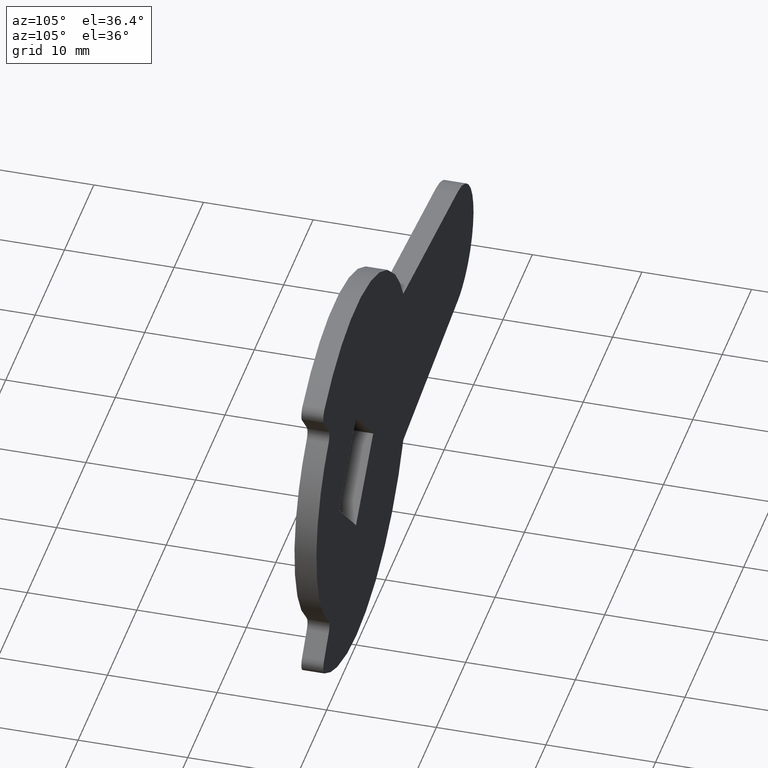
[diagram: clean part render]
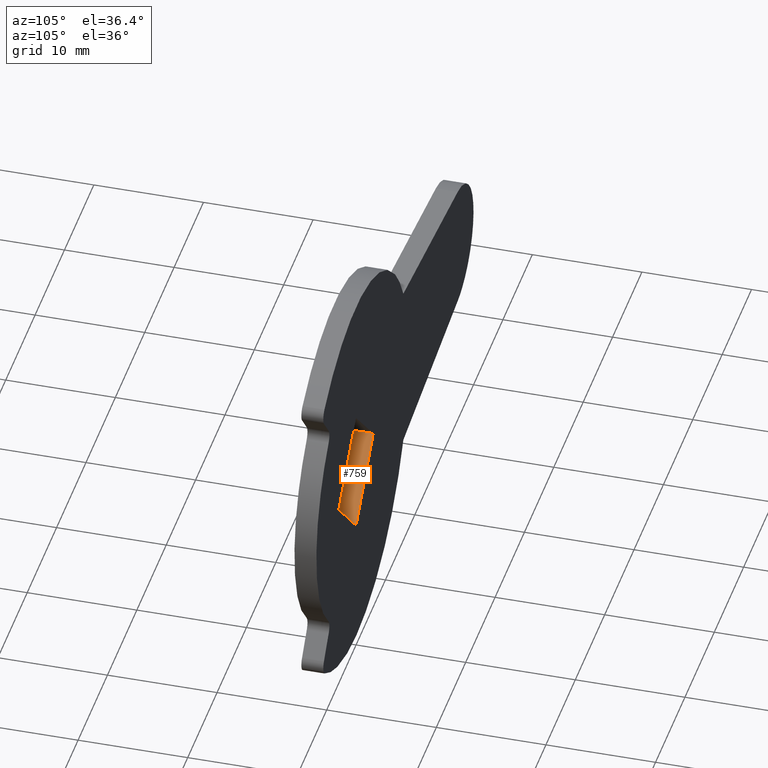
[diagram: same view with one face highlighted and labeled with its STEP entity id]
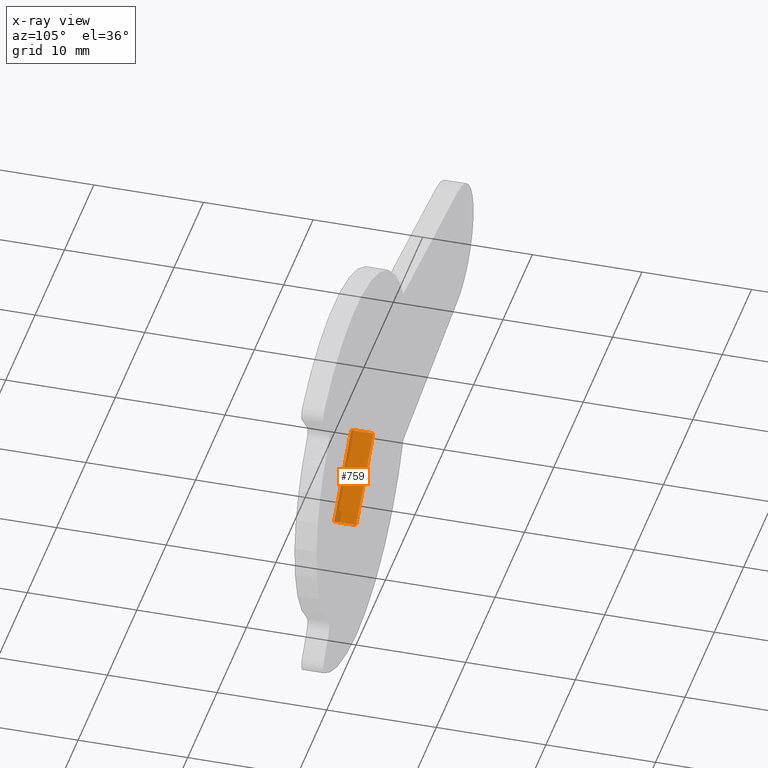
[diagram: x-ray of the same camera — body ghosted, the highlighted face saturated]
A machine part, auxiliary view. The second image highlights one B-rep face of the part: STEP entity #759.
The next image is the same camera in x-ray: the body ghosted, the highlighted face saturated — about 13% of this face is hidden behind the body in this view.
In plain terms, the highlighted face is a freeform B-spline surface patch.
Its self-contained STEP definition (entity closure, byte-faithful):
#213=CARTESIAN_POINT('',(0.000100000000003,0.0,-5.869000000000000));
#214=VERTEX_POINT('',#213);
#227=CARTESIAN_POINT('',(-5.868900000000000,0.0,0.0));
#228=VERTEX_POINT('',#227);
#234=CARTESIAN_POINT('',(0.000100000000003,0.0,-5.869000000000000));
#235=CARTESIAN_POINT('',(-5.868900000000000,0.0,0.0));
#236=QUASI_UNIFORM_CURVE('',1,(#234,#235),.UNSPECIFIED.,.F.,.U.);
#237=EDGE_CURVE('',#214,#228,#236,.T.);
#411=CARTESIAN_POINT('',(0.000100000000003,-2.0,-5.869000000000000));
#412=VERTEX_POINT('',#411);
#418=CARTESIAN_POINT('',(-5.868900000000000,-2.0,0.0));
#419=VERTEX_POINT('',#418);
#420=CARTESIAN_POINT('',(0.000100000000003,-2.0,-5.869000000000000));
#421=CARTESIAN_POINT('',(-5.868900000000000,-2.0,0.0));
#422=QUASI_UNIFORM_CURVE('',1,(#420,#421),.UNSPECIFIED.,.F.,.U.);
#423=EDGE_CURVE('',#412,#419,#422,.T.);
#736=CARTESIAN_POINT('',(-5.868900000000000,-2.0,0.0));
#737=CARTESIAN_POINT('',(-5.868900000000000,0.0,0.0));
#738=QUASI_UNIFORM_CURVE('',1,(#736,#737),.UNSPECIFIED.,.F.,.U.);
#739=EDGE_CURVE('',#419,#228,#738,.T.);
#744=CARTESIAN_POINT('',(0.293256517656553,-2.099899996123612,-6.162156517656548));
#745=CARTESIAN_POINT('',(-6.162056255291803,-2.099899996123612,0.293156255291806));
#746=CARTESIAN_POINT('',(0.293256517656553,0.099900049767792,-6.162156517656548));
#747=CARTESIAN_POINT('',(-6.162056255291803,0.099900049767792,0.293156255291806));
#748=B_SPLINE_SURFACE_WITH_KNOTS('',1,1,((#744,#746),(#745,#747)),.UNSPECIFIED.,.F.,.F.,.U.,(2,2),(2,2),(0.0,9.129190872863836),(0.0,2.199800045891404),.UNSPECIFIED.);
#749=ORIENTED_EDGE('',*,*,#237,.T.);
#750=ORIENTED_EDGE('',*,*,#739,.F.);
#751=ORIENTED_EDGE('',*,*,#423,.F.);
#752=CARTESIAN_POINT('',(0.000100000000003,-2.0,-5.869000000000000));
#753=CARTESIAN_POINT('',(0.000100000000003,0.0,-5.869000000000000));
#754=QUASI_UNIFORM_CURVE('',1,(#752,#753),.UNSPECIFIED.,.F.,.U.);
#755=EDGE_CURVE('',#412,#214,#754,.T.);
#756=ORIENTED_EDGE('',*,*,#755,.T.);
#757=EDGE_LOOP('',(#749,#750,#751,#756));
#758=FACE_OUTER_BOUND('',#757,.T.);
#759=ADVANCED_FACE('',(#758),#748,.F.);